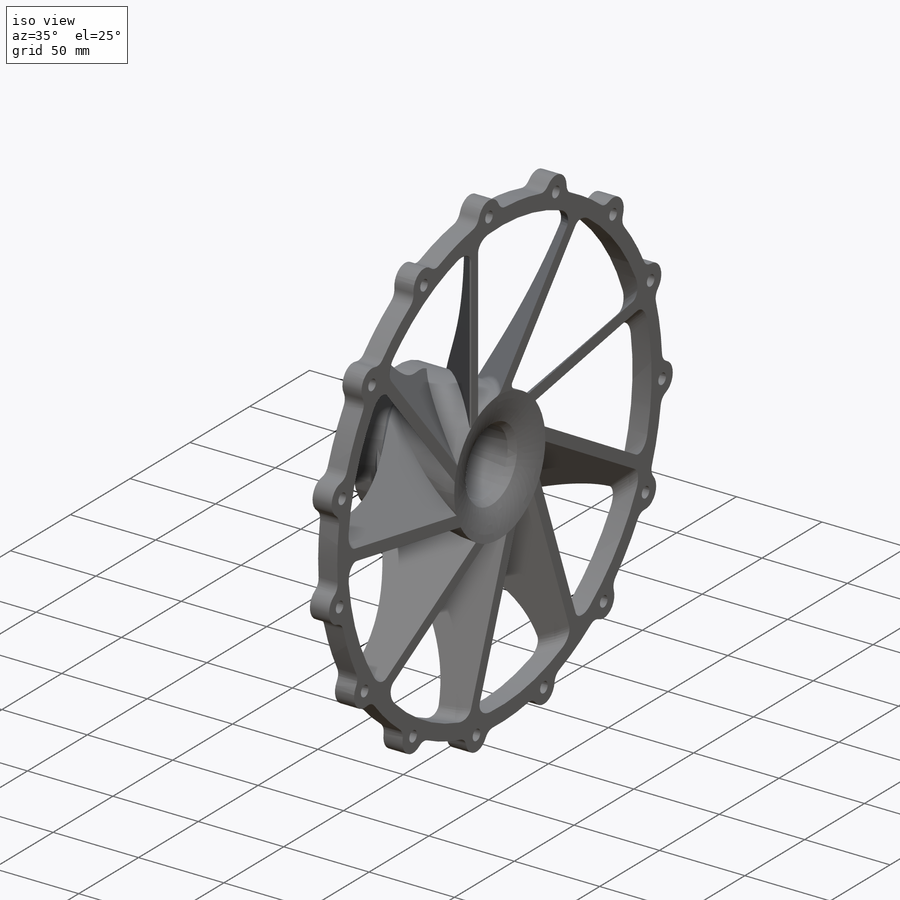
[diagram: iso view]
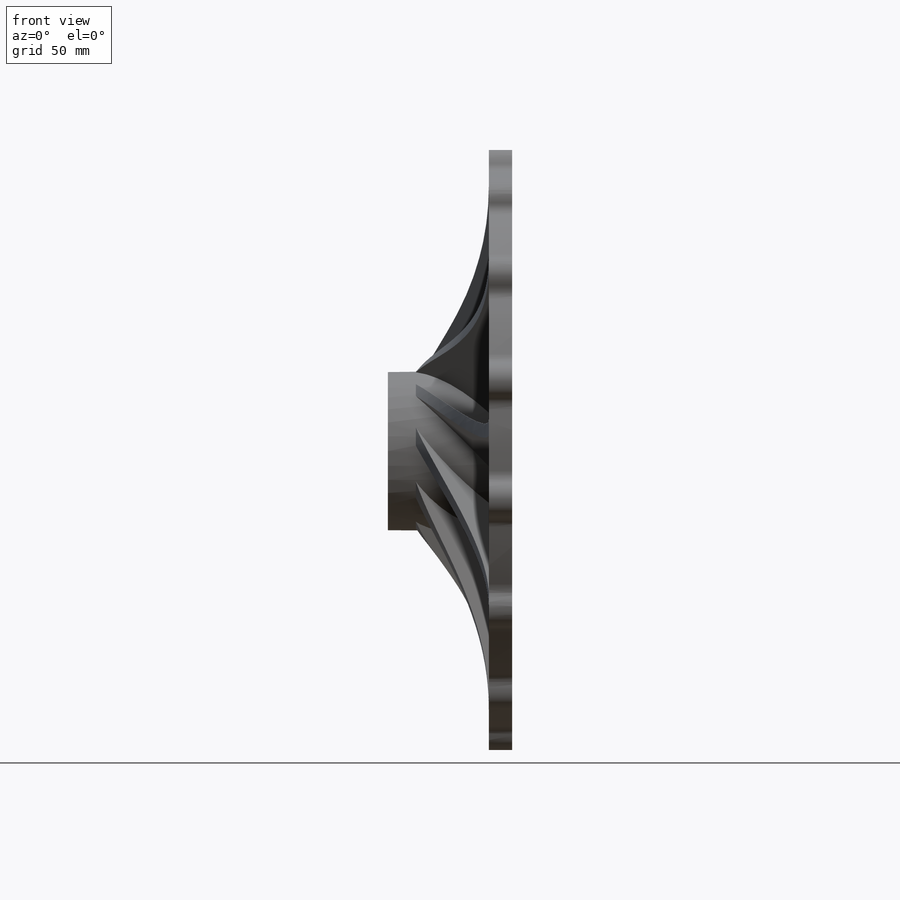
[diagram: front view]
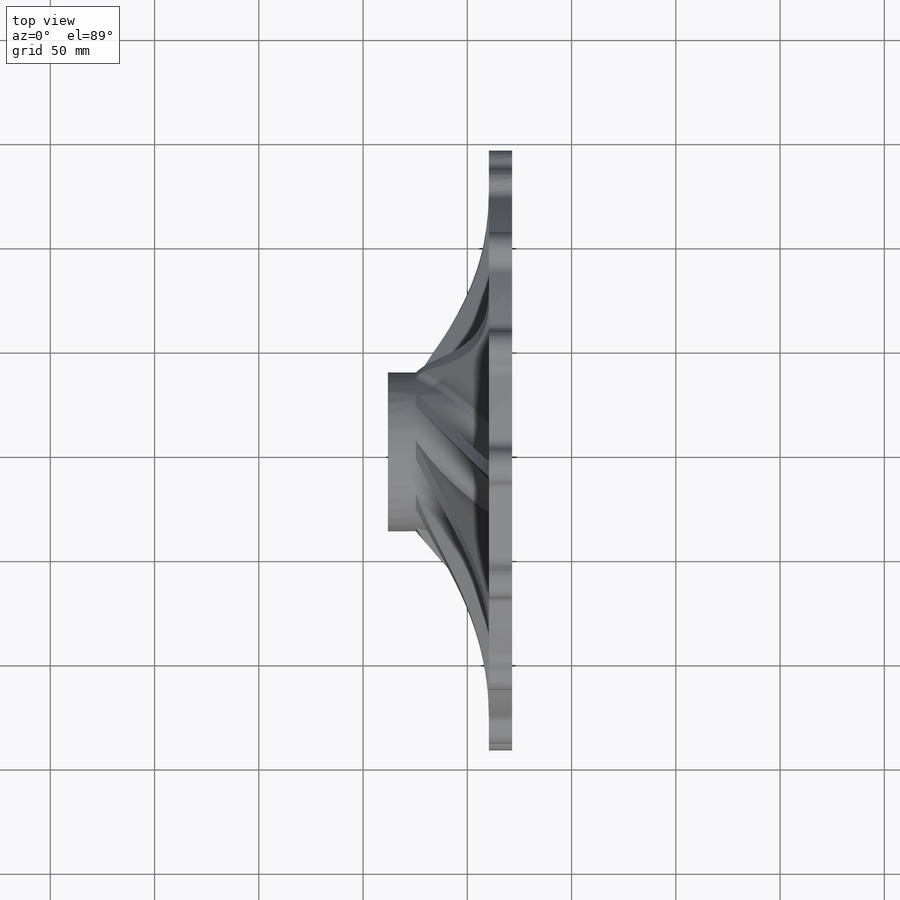
[diagram: top view]
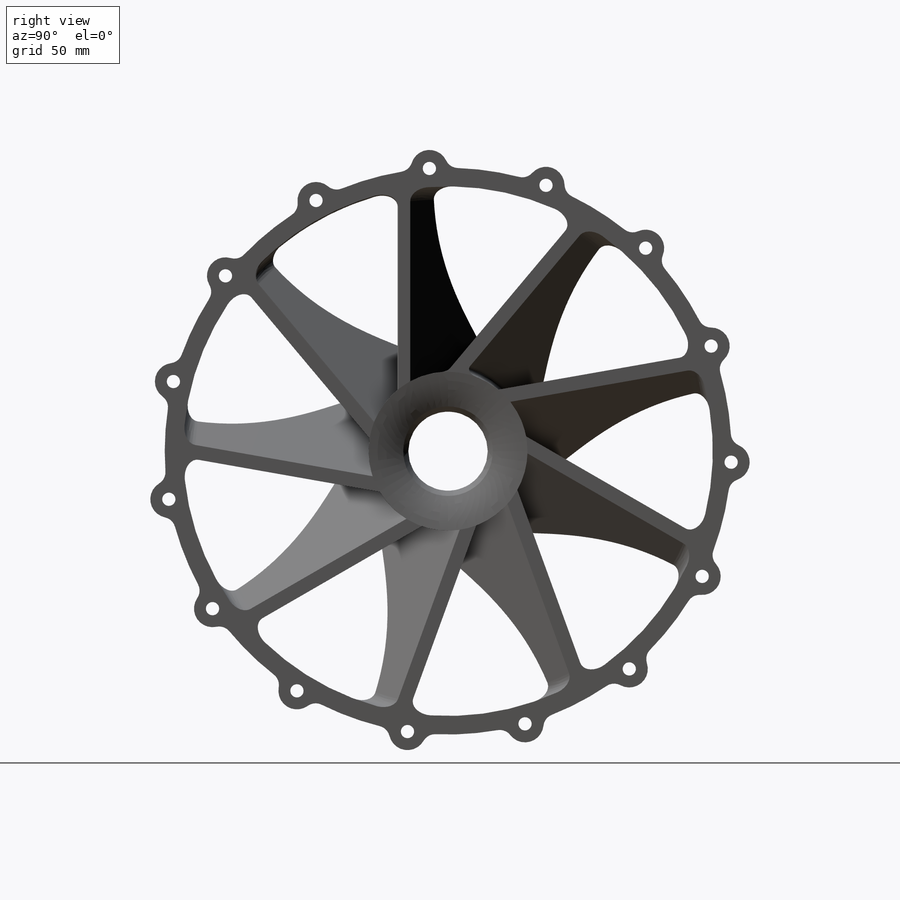
[diagram: right view]
SOLIDWORKS PART (.sldprt)
format: sldprt  version: not decoded by parser v0  size: 1,171,456 bytes
history: native  units: mm
features: sketch x14, cut_extrude x5, plane x4, pattern_circular x4, fillet x4, extrude x2, cut_revolve x2, chamfer x2, material x1, revolve x1 (+11 scaffold rows collapsed)
feature tree (50):
  scaffold x11  (default folders/planes/origin — collapsed)
  material  "7075-T6 (SN)"
  sketch  "Sketch1"  dims[c1.D4=1.5875mm c1.D1=63.5mm c1.D2=9.525mm c1.D3=43.7927mm c2.D3=45.0deg c2.D1=4.7625mm c2.D2=101.6mm]
  sketch  "Sketch3"
  revolve  "Revolve1"  Angle=360deg
  sketch  "Sketch4"
  cut_extrude  "Cut-Extrude1"  Depth=71mm
  sketch  "Sketch5"  dims[D1=76.2mm D2=38.1mm]
  extrude  "Boss-Extrude2"  Depth=38.1mm
  sketch  "Sketch8"  dims[D1=254.0mm D2=17.78mm]
  extrude  "Boss-Extrude4"  Depth=50.8mm
  plane  "Plane1"
  sketch  "Sketch9"  dims[D1=133.35mm]
  sketch  "Sketch10"  dims[D4=12.7mm D1=50.8mm D2=50.8mm D3=6.35mm]
  plane  "Plane2"
  sketch  "Sketch11"  dims[c1.D2=1.27mm c1.D3=1.27mm c1.D1=9.525mm c2.D2=7.9375mm c2.D1=4.7625mm c3.D2=50.8mm]
  pattern_circular  "CirPattern4"  Count=9 Angle=40deg
  sketch  "Sketch21"
  cut_extrude  "Cut-Extrude8"  [1 undecoded]
  sketch  "Sketch12"  dims[c1.D1=6.35mm c1.D2=~223.43127mm c2.D2=~6.184451deg c2.D3=8.89mm c3.D2=~222.496128mm c4.D2=5.0deg]
  cut_extrude  "Cut-Extrude3"  [1 undecoded]
  pattern_circular  "CirPattern5"  Count=15 Angle=24deg
  sketch  "Sketch13"
  cut_extrude  "Cut-Extrude4"  Depth=66.548mm
  pattern_circular  "CirPattern6"  Count=12 Angle=360deg
  plane  "Plane3"  Offset=2.54mm
  sketch  "Sketch14"  dims[c1.D2=~214.071111mm c1.D3=~316.644666mm c1.D4=50.8mm c1.D5=50.8mm c2.D2=190.5mm c2.D5=50.8mm c2.D1=47.625mm c2.D3=22.86mm c2.D4=146.05mm c3.D2=~92.251775mm c4.D2=~271.983927deg c4.D6=~53.853523mm c5.D2=38.1mm]
  cut_revolve  "Cut-Revolve1"  Angle=360deg
  sketch  "Sketch19"  dims[c1.D2=50.8mm c1.D4=127.0mm c1.D1=17.78mm c2.D2=22.225mm c2.D3=38.1mm c2.D4=35.56mm c2.D5=17.78mm c2.D1=144.78mm c2.D6=65.38mm c2.D7=127.0mm c3.D5=127.0mm c3.D7=~22.372773mm c3.D2=38.1mm c4.D5=127.0mm]
  cut_revolve  "Cut-Revolve2"  Angle=360deg
  sketch  "Sketch20"  dims[D1=18.034mm]
  cut_extrude  "Cut-Extrude7"  Depth=37.084mm
  fillet  "Fillet15"  Radius=6.35mm
  pattern_circular  "CirPattern7"  Count=15 Angle=24deg
  chamfer  "Chamfer1"  Distance=2.54mm Angle=30deg
  fillet  "Fillet12"  Radius=6.35mm
  fillet  "Fillet13"  Radius=3.175mm
  fillet  "Fillet14"  Radius=1.27mm
  plane  "Plane4"
  chamfer  "Chamfer2"  Distance=0.1651mm Angle=45deg
decode coverage: 28 of 34 modeling features carry decoded parameters
note: ~ marks probable driven/reference dimensions
note: 2 parameter values undecoded
note: suppression state not decoded; provenance and decode notes live in map.json
